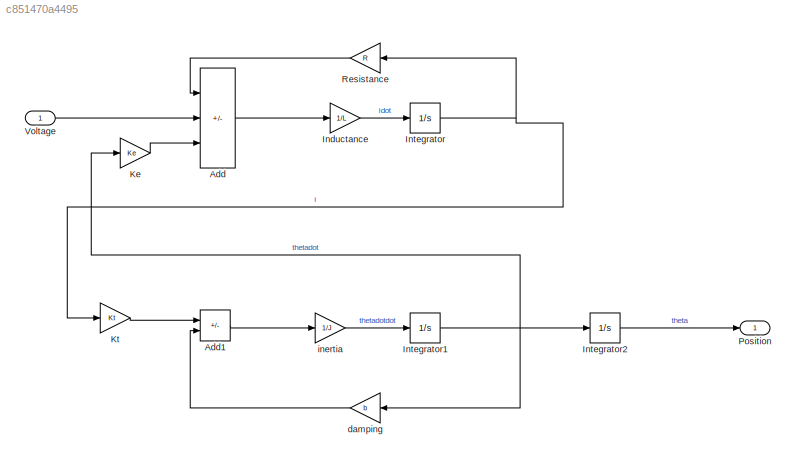
MODEL slx_c851470a4495
KIND model
CONFIG AbsTol = auto
CONFIG EnableMultiTasking = off
CONFIG FixedStep = auto
CONFIG MaxStep = auto
CONFIG MinStep = auto
CONFIG RelTol = 1e-3
CONFIG SampleTimeConstraint = Unconstrained
CONFIG SolverName = VariableStepAuto
CONFIG StartTime = 0.0
CONFIG StopTime = 10.0
BLOCK [Sum] Add
  IconShape = rectangular
  Inputs = -+-
  Ports = [3, 1]
BLOCK [Sum] Add1
  IconShape = rectangular
  Inputs = +-
  Ports = [2, 1]
BLOCK [Gain] Inductance
  Gain = 1/L
BLOCK [Integrator] Integrator
  Ports = [1, 1]
BLOCK [Integrator] Integrator1
  Ports = [1, 1]
BLOCK [Integrator] Integrator2
  Ports = [1, 1]
BLOCK [Gain] Ke
  Gain = Ke
BLOCK [Gain] Kt
  Gain = Kt
BLOCK [Outport] Position
  OutDataTypeStr = double
  PortDimensions = 1
  SampleTime = 0
  SamplingMode = Sample based
  SignalType = real
BLOCK [Gain] Resistance
  Gain = R
  NameLocation = top
BLOCK [Inport] Voltage
  OutDataTypeStr = double
  PortDimensions = 1
  SamplingMode = Sample based
  SignalType = real
BLOCK [Gain] damping
  Gain = b
  NameLocation = top
BLOCK [Gain] inertia
  Gain = 1/J
LINE Add1:1 -> inertia:1
LINE Add:1 -> Inductance:1
LINE Inductance:1 -> Integrator:1
NET Integrator1:1 -> Integrator2:1, Ke:1, damping:1
LINE Integrator2:1 -> Position:1
NET Integrator:1 -> Kt:1, Resistance:1
LINE Ke:1 -> Add:3
LINE Kt:1 -> Add1:1
LINE Resistance:1 -> Add:1
LINE Voltage:1 -> Add:2
LINE damping:1 -> Add1:2
LINE inertia:1 -> Integrator1:1
note: NET lines group one-source signal fan-out (src -> all destinations, sorted); 1:1 wires keep LINE
